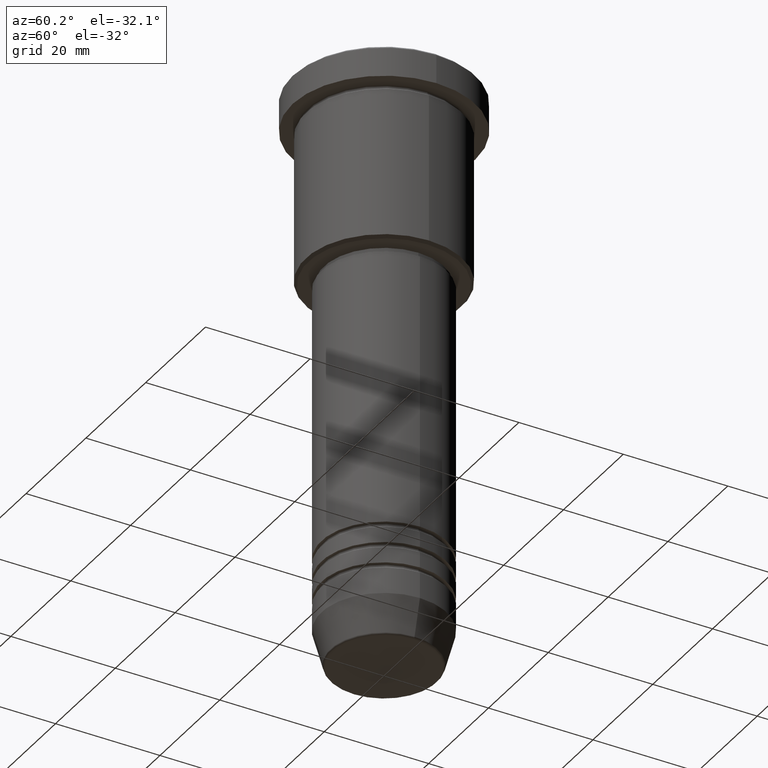
[diagram: clean part render]
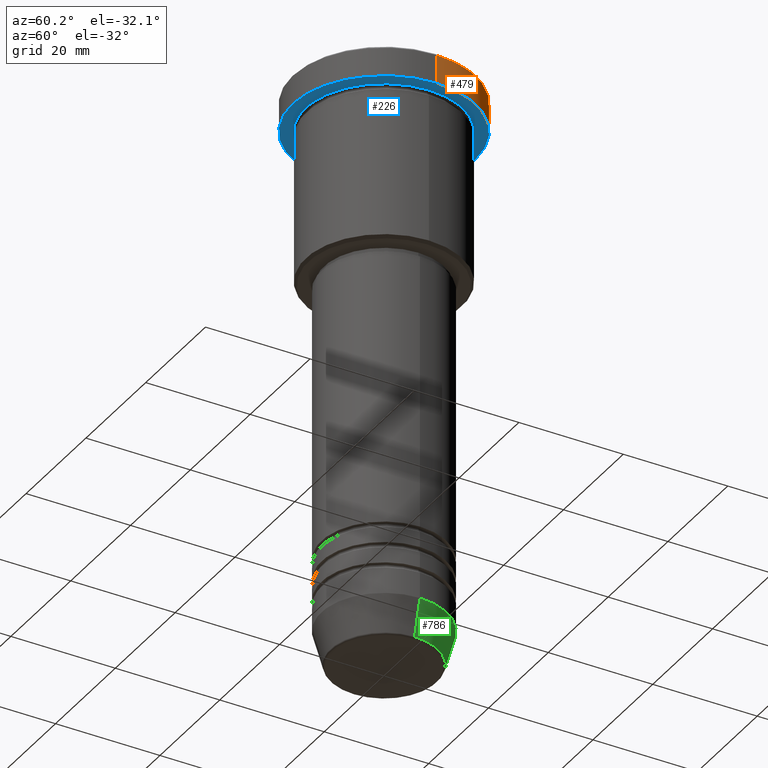
[diagram: same view with three faces highlighted in distinct colors, each labeled with its STEP entity id]
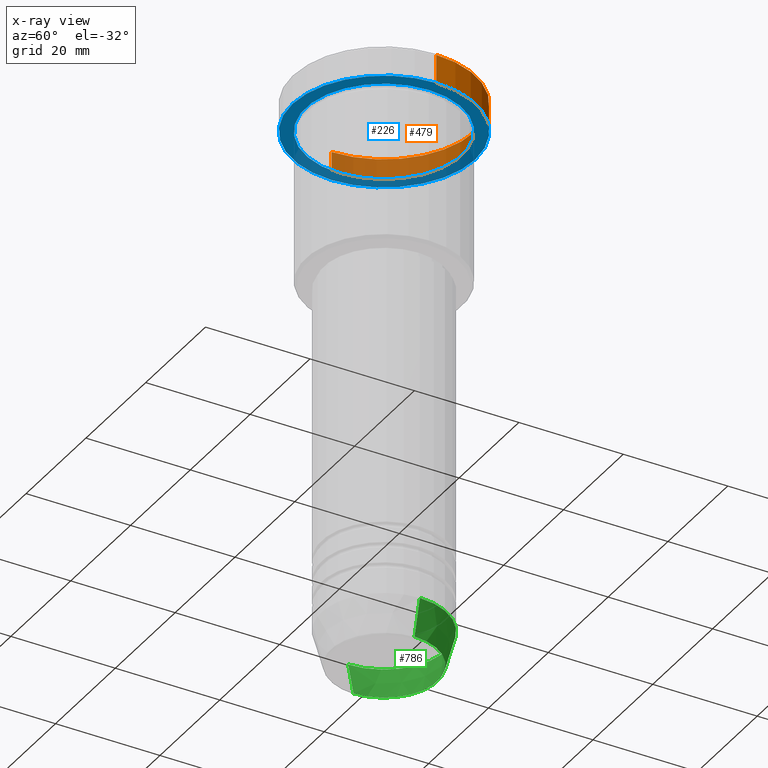
[diagram: x-ray of the same camera — body ghosted, the three highlighted faces saturated]
A machine part, auxiliary view with three faces highlighted in distinct colors.
The next image is the same camera in x-ray (body ghosted, the three faces saturated) — at least one of them is partly hidden behind the body in this view.
Their STEP definitions:

[orange] entity #479 — the highlighted cylindrical surface (partial cylindrical patch) has radius 17.5 mm, axis along (-0, -0, 1).
#7 = EDGE_CURVE ( 'NONE', #410, #812, #1130, .T. ) ;
#9 = VERTEX_POINT ( 'NONE', #776 ) ;
#19 = ORIENTED_EDGE ( 'NONE', *, *, #1155, .T. ) ;
#29 = CARTESIAN_POINT ( 'NONE',  ( 17.50000000000000000, 0.000000000000000000, 0.000000000000000000 ) ) ;
#32 = FACE_OUTER_BOUND ( 'NONE', #446, .T. ) ;
#34 = DIRECTION ( 'NONE',  ( -0.000000000000000000, -0.000000000000000000, 1.000000000000000000 ) ) ;
#50 = VECTOR ( 'NONE', #576, 1000.000000000000000 ) ;
#98 = CARTESIAN_POINT ( 'NONE',  ( -17.50000000000000000, 2.143131898507868248E-15, -5.999999999999995559 ) ) ;
#174 = DIRECTION ( 'NONE',  ( 0.000000000000000000, 0.000000000000000000, -1.000000000000000000 ) ) ;
#215 = DIRECTION ( 'NONE',  ( -0.000000000000000000, -0.000000000000000000, 1.000000000000000000 ) ) ;
#289 = AXIS2_PLACEMENT_3D ( 'NONE', #406, #394, #489 ) ;
#305 = ORIENTED_EDGE ( 'NONE', *, *, #753, .T. ) ;
#394 = DIRECTION ( 'NONE',  ( -0.000000000000000000, -0.000000000000000000, 1.000000000000000000 ) ) ;
#403 = AXIS2_PLACEMENT_3D ( 'NONE', #873, #215, #979 ) ;
#406 = CARTESIAN_POINT ( 'NONE',  ( 0.000000000000000000, 0.000000000000000000, 0.000000000000000000 ) ) ;
#410 = VERTEX_POINT ( 'NONE', #734 ) ;
#446 = EDGE_LOOP ( 'NONE', ( #1103, #305, #19, #1121 ) ) ;
#479 = ADVANCED_FACE ( 'NONE', ( #32 ), #1119, .T. ) ;
#489 = DIRECTION ( 'NONE',  ( 1.000000000000000000, 0.000000000000000000, 0.000000000000000000 ) ) ;
#526 = CIRCLE ( 'NONE', #951, 17.50000000000000000 ) ;
#544 = VECTOR ( 'NONE', #34, 1000.000000000000000 ) ;
#557 = DIRECTION ( 'NONE',  ( 1.000000000000000000, 0.000000000000000000, 0.000000000000000000 ) ) ;
#561 = VERTEX_POINT ( 'NONE', #98 ) ;
#576 = DIRECTION ( 'NONE',  ( -0.000000000000000000, -0.000000000000000000, 1.000000000000000000 ) ) ;
#620 = EDGE_CURVE ( 'NONE', #410, #561, #950, .T. ) ;
#718 = CARTESIAN_POINT ( 'NONE',  ( 17.50000000000000000, 0.000000000000000000, -0.4999999999999865663 ) ) ;
#724 = CARTESIAN_POINT ( 'NONE',  ( 0.000000000000000000, 0.000000000000000000, -0.4999999999999865663 ) ) ;
#734 = CARTESIAN_POINT ( 'NONE',  ( 17.50000000000000000, 0.000000000000000000, -5.999999999999995559 ) ) ;
#753 = EDGE_CURVE ( 'NONE', #561, #9, #1038, .T. ) ;
#776 = CARTESIAN_POINT ( 'NONE',  ( -17.50000000000000000, 2.143131898507868248E-15, -0.4999999999999865663 ) ) ;
#812 = VERTEX_POINT ( 'NONE', #718 ) ;
#873 = CARTESIAN_POINT ( 'NONE',  ( 0.000000000000000000, 0.000000000000000000, -5.999999999999995559 ) ) ;
#948 = CARTESIAN_POINT ( 'NONE',  ( -17.50000000000000000, 2.143131898507868248E-15, 0.000000000000000000 ) ) ;
#950 = CIRCLE ( 'NONE', #403, 17.50000000000000000 ) ;
#951 = AXIS2_PLACEMENT_3D ( 'NONE', #724, #174, #557 ) ;
#979 = DIRECTION ( 'NONE',  ( 1.000000000000000000, 0.000000000000000000, 0.000000000000000000 ) ) ;
#1038 = LINE ( 'NONE', #948, #50 ) ;
#1103 = ORIENTED_EDGE ( 'NONE', *, *, #620, .T. ) ;
#1119 = CYLINDRICAL_SURFACE ( 'NONE', #289, 17.50000000000000000 ) ;
#1121 = ORIENTED_EDGE ( 'NONE', *, *, #7, .F. ) ;
#1130 = LINE ( 'NONE', #29, #544 ) ;
#1155 = EDGE_CURVE ( 'NONE', #9, #812, #526, .T. ) ;

[blue] entity #226 — the highlighted planar face has unit normal (0, 0, -1).
#98 = CARTESIAN_POINT ( 'NONE',  ( -17.50000000000000000, 2.143131898507868248E-15, -5.999999999999995559 ) ) ;
#107 = VERTEX_POINT ( 'NONE', #713 ) ;
#149 = DIRECTION ( 'NONE',  ( -1.000000000000000000, 0.000000000000000000, 0.000000000000000000 ) ) ;
#169 = CARTESIAN_POINT ( 'NONE',  ( 0.000000000000000000, 0.000000000000000000, -5.999999999999995559 ) ) ;
#200 = AXIS2_PLACEMENT_3D ( 'NONE', #691, #1051, #490 ) ;
#202 = FACE_BOUND ( 'NONE', #598, .T. ) ;
#215 = DIRECTION ( 'NONE',  ( -0.000000000000000000, -0.000000000000000000, 1.000000000000000000 ) ) ;
#226 = ADVANCED_FACE ( 'NONE', ( #202, #413 ), #774, .T. ) ;
#232 = DIRECTION ( 'NONE',  ( -0.000000000000000000, -0.000000000000000000, 1.000000000000000000 ) ) ;
#234 = EDGE_LOOP ( 'NONE', ( #768, #978 ) ) ;
#244 = CIRCLE ( 'NONE', #579, 15.00000000000000000 ) ;
#269 = EDGE_CURVE ( 'NONE', #635, #107, #244, .T. ) ;
#358 = DIRECTION ( 'NONE',  ( -0.000000000000000000, -0.000000000000000000, 1.000000000000000000 ) ) ;
#403 = AXIS2_PLACEMENT_3D ( 'NONE', #873, #215, #979 ) ;
#410 = VERTEX_POINT ( 'NONE', #734 ) ;
#413 = FACE_OUTER_BOUND ( 'NONE', #234, .T. ) ;
#435 = DIRECTION ( 'NONE',  ( -1.000000000000000000, 0.000000000000000000, 0.000000000000000000 ) ) ;
#490 = DIRECTION ( 'NONE',  ( -1.000000000000000000, 0.000000000000000000, -0.000000000000000000 ) ) ;
#523 = CIRCLE ( 'NONE', #853, 15.00000000000000000 ) ;
#561 = VERTEX_POINT ( 'NONE', #98 ) ;
#579 = AXIS2_PLACEMENT_3D ( 'NONE', #169, #358, #435 ) ;
#598 = EDGE_LOOP ( 'NONE', ( #982, #707 ) ) ;
#620 = EDGE_CURVE ( 'NONE', #410, #561, #950, .T. ) ;
#635 = VERTEX_POINT ( 'NONE', #697 ) ;
#643 = AXIS2_PLACEMENT_3D ( 'NONE', #864, #232, #963 ) ;
#644 = EDGE_CURVE ( 'NONE', #107, #635, #523, .T. ) ;
#691 = CARTESIAN_POINT ( 'NONE',  ( 0.000000000000000000, 17.50000000000000000, -5.999999999999995559 ) ) ;
#697 = CARTESIAN_POINT ( 'NONE',  ( 15.00000000000000000, 1.836970198721029589E-15, -5.999999999999994671 ) ) ;
#707 = ORIENTED_EDGE ( 'NONE', *, *, #269, .T. ) ;
#713 = CARTESIAN_POINT ( 'NONE',  ( -15.00000000000000000, 0.000000000000000000, -5.999999999999994671 ) ) ;
#734 = CARTESIAN_POINT ( 'NONE',  ( 17.50000000000000000, 0.000000000000000000, -5.999999999999995559 ) ) ;
#768 = ORIENTED_EDGE ( 'NONE', *, *, #620, .F. ) ;
#774 = PLANE ( 'NONE',  #200 ) ;
#853 = AXIS2_PLACEMENT_3D ( 'NONE', #1060, #1134, #149 ) ;
#864 = CARTESIAN_POINT ( 'NONE',  ( 0.000000000000000000, 0.000000000000000000, -5.999999999999995559 ) ) ;
#873 = CARTESIAN_POINT ( 'NONE',  ( 0.000000000000000000, 0.000000000000000000, -5.999999999999995559 ) ) ;
#950 = CIRCLE ( 'NONE', #403, 17.50000000000000000 ) ;
#963 = DIRECTION ( 'NONE',  ( 1.000000000000000000, 0.000000000000000000, 0.000000000000000000 ) ) ;
#978 = ORIENTED_EDGE ( 'NONE', *, *, #1089, .F. ) ;
#979 = DIRECTION ( 'NONE',  ( 1.000000000000000000, 0.000000000000000000, 0.000000000000000000 ) ) ;
#982 = ORIENTED_EDGE ( 'NONE', *, *, #644, .T. ) ;
#1051 = DIRECTION ( 'NONE',  ( 0.000000000000000000, 0.000000000000000000, -1.000000000000000000 ) ) ;
#1060 = CARTESIAN_POINT ( 'NONE',  ( 0.000000000000000000, 0.000000000000000000, -5.999999999999995559 ) ) ;
#1089 = EDGE_CURVE ( 'NONE', #561, #410, #1125, .T. ) ;
#1125 = CIRCLE ( 'NONE', #643, 17.50000000000000000 ) ;
#1134 = DIRECTION ( 'NONE',  ( -0.000000000000000000, -0.000000000000000000, 1.000000000000000000 ) ) ;

[green] entity #786 — the highlighted conical surface has half-angle 15 deg.
#2 = ORIENTED_EDGE ( 'NONE', *, *, #881, .F. ) ;
#18 = CARTESIAN_POINT ( 'NONE',  ( 0.000000000000000000, 0.000000000000000000, -104.0000000000000000 ) ) ;
#45 = VECTOR ( 'NONE', #563, 1000.000000000000000 ) ;
#64 = CARTESIAN_POINT ( 'NONE',  ( -10.22365507213718949, 1.360806402472382744E-15, -110.6294095225512564 ) ) ;
#66 = CIRCLE ( 'NONE', #218, 12.00000000000000000 ) ;
#128 = VERTEX_POINT ( 'NONE', #981 ) ;
#129 = FACE_OUTER_BOUND ( 'NONE', #925, .T. ) ;
#218 = AXIS2_PLACEMENT_3D ( 'NONE', #18, #1113, #484 ) ;
#311 = AXIS2_PLACEMENT_3D ( 'NONE', #730, #464, #353 ) ;
#353 = DIRECTION ( 'NONE',  ( 1.000000000000000000, 0.000000000000000000, 0.000000000000000000 ) ) ;
#360 = EDGE_CURVE ( 'NONE', #984, #398, #913, .T. ) ;
#372 = CARTESIAN_POINT ( 'NONE',  ( -12.00000000000000000, 1.469576158976823947E-15, -104.0000000000000000 ) ) ;
#389 = AXIS2_PLACEMENT_3D ( 'NONE', #506, #439, #886 ) ;
#398 = VERTEX_POINT ( 'NONE', #372 ) ;
#426 = VECTOR ( 'NONE', #626, 1000.000000000000000 ) ;
#439 = DIRECTION ( 'NONE',  ( -0.000000000000000000, -0.000000000000000000, 1.000000000000000000 ) ) ;
#464 = DIRECTION ( 'NONE',  ( -0.000000000000000000, -0.000000000000000000, 1.000000000000000000 ) ) ;
#484 = DIRECTION ( 'NONE',  ( 1.000000000000000000, 0.000000000000000000, 0.000000000000000000 ) ) ;
#486 = EDGE_CURVE ( 'NONE', #128, #398, #66, .T. ) ;
#506 = CARTESIAN_POINT ( 'NONE',  ( 0.000000000000000000, 0.000000000000000000, -110.6294095225512564 ) ) ;
#539 = ORIENTED_EDGE ( 'NONE', *, *, #360, .T. ) ;
#563 = DIRECTION ( 'NONE',  ( -0.2588190451025213501, 3.169619151431772337E-17, 0.9659258262890680902 ) ) ;
#619 = CONICAL_SURFACE ( 'NONE', #311, 12.00000000000000000, 0.2617993877991500740 ) ;
#626 = DIRECTION ( 'NONE',  ( 0.2588190451025213501, 0.000000000000000000, 0.9659258262890680902 ) ) ;
#645 = CARTESIAN_POINT ( 'NONE',  ( 12.00000000000000000, 0.000000000000000000, -104.0000000000000000 ) ) ;
#655 = EDGE_CURVE ( 'NONE', #900, #984, #896, .T. ) ;
#730 = CARTESIAN_POINT ( 'NONE',  ( 0.000000000000000000, 0.000000000000000000, -104.0000000000000000 ) ) ;
#785 = ORIENTED_EDGE ( 'NONE', *, *, #486, .F. ) ;
#786 = ADVANCED_FACE ( 'NONE', ( #129 ), #619, .T. ) ;
#808 = LINE ( 'NONE', #645, #426 ) ;
#868 = CARTESIAN_POINT ( 'NONE',  ( 10.22365507213718949, 0.000000000000000000, -110.6294095225512564 ) ) ;
#881 = EDGE_CURVE ( 'NONE', #900, #128, #808, .T. ) ;
#886 = DIRECTION ( 'NONE',  ( 1.000000000000000000, 0.000000000000000000, 0.000000000000000000 ) ) ;
#896 = CIRCLE ( 'NONE', #389, 10.22365507213718949 ) ;
#900 = VERTEX_POINT ( 'NONE', #868 ) ;
#913 = LINE ( 'NONE', #1172, #45 ) ;
#925 = EDGE_LOOP ( 'NONE', ( #929, #539, #785, #2 ) ) ;
#929 = ORIENTED_EDGE ( 'NONE', *, *, #655, .T. ) ;
#981 = CARTESIAN_POINT ( 'NONE',  ( 12.00000000000000000, 0.000000000000000000, -104.0000000000000000 ) ) ;
#984 = VERTEX_POINT ( 'NONE', #64 ) ;
#1113 = DIRECTION ( 'NONE',  ( -0.000000000000000000, -0.000000000000000000, 1.000000000000000000 ) ) ;
#1172 = CARTESIAN_POINT ( 'NONE',  ( -12.00000000000000000, 1.469576158976823947E-15, -104.0000000000000000 ) ) ;